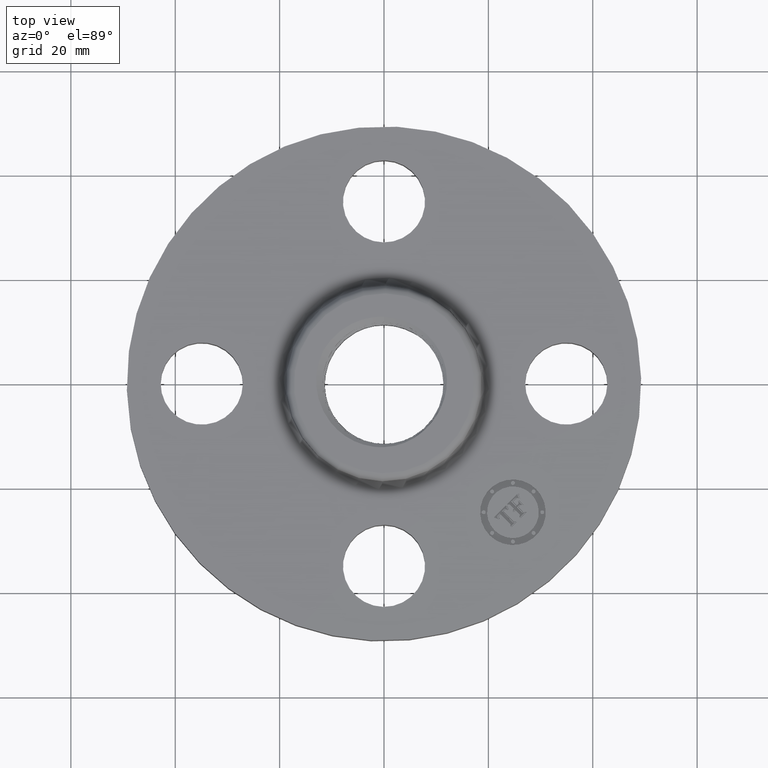
[diagram: clean part render]
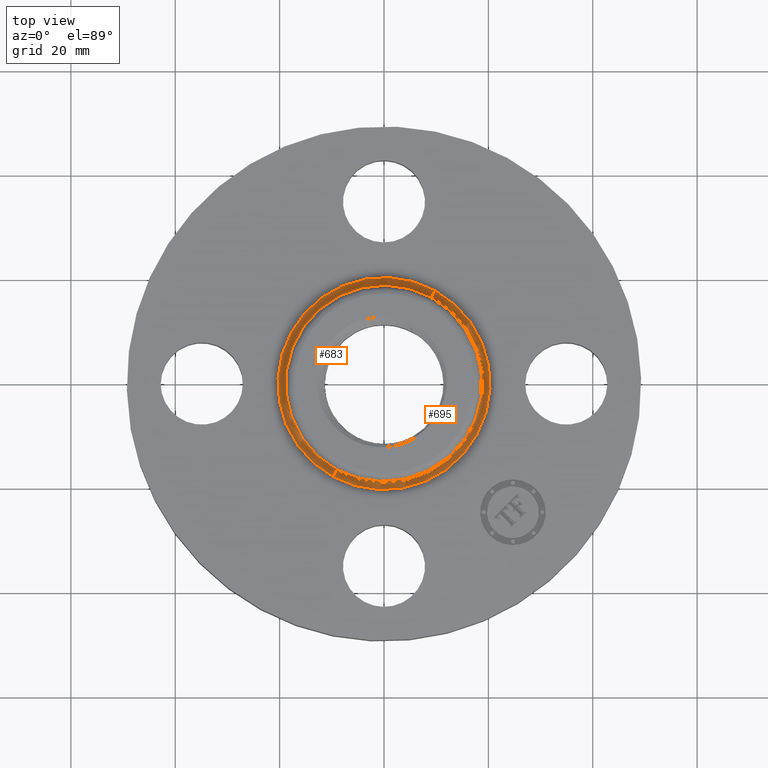
[diagram: same view with one multi-face feature highlighted, each face labeled with its STEP entity id]
A machine part, top view. The highlighted faces form ONE feature: a constant-radius fillet chain: 2 tangent blend faces with common blend radius 1.524 mm. The faces share edges in the B-rep.
Their STEP definitions:
[1] entity #683 (Torus):
#617=AXIS2_PLACEMENT_3D('Circle Axis2P3D',#615,#616,$) ;
#656=AXIS2_PLACEMENT_3D('Torus Axis2P3D',#653,#654,#655) ;
#660=AXIS2_PLACEMENT_3D('Circle Axis2P3D',#658,#659,$) ;
#669=AXIS2_PLACEMENT_3D('Circle Axis2P3D',#667,#668,$) ;
#674=AXIS2_PLACEMENT_3D('Circle Axis2P3D',#672,#673,$) ;
#615=CARTESIAN_POINT('Axis2P3D Location',(0.,0.,0.489581109342)) ;
#619=CARTESIAN_POINT('Vertex',(-0.355377782267,-0.650514667009,0.489581109342)) ;
#621=CARTESIAN_POINT('Vertex',(0.355377782267,0.650514667009,0.489581109342)) ;
#653=CARTESIAN_POINT('Axis2P3D Location',(0.,0.,0.500000000002)) ;
#658=CARTESIAN_POINT('Axis2P3D Location',(0.,0.,0.440000000002)) ;
#662=CARTESIAN_POINT('Vertex',(-0.383706301512,-0.702369673661,0.440000000002)) ;
#664=CARTESIAN_POINT('Vertex',(0.383706301512,0.702369673661,0.440000000002)) ;
#667=CARTESIAN_POINT('Axis2P3D Location',(-0.383706301512,-0.702369673661,0.500000000002)) ;
#672=CARTESIAN_POINT('Axis2P3D Location',(0.383706301512,0.702369673661,0.500000000002)) ;
#616=DIRECTION('Axis2P3D Direction',(0.,0.,-0.0393700787402)) ;
#654=DIRECTION('Axis2P3D Direction',(0.,0.,-0.0393700787402)) ;
#655=DIRECTION('Axis2P3D XDirection',(0.0188750212049,0.0345504945626,0.)) ;
#659=DIRECTION('Axis2P3D Direction',(0.,0.,-0.0393700787402)) ;
#668=DIRECTION('Axis2P3D Direction',(0.0345504945626,-0.0188750212049,0.)) ;
#673=DIRECTION('Axis2P3D Direction',(-0.0345504945626,0.0188750212049,0.)) ;
#678=ORIENTED_EDGE('',*,*,#666,.F.) ;
#679=ORIENTED_EDGE('',*,*,#671,.T.) ;
#680=ORIENTED_EDGE('',*,*,#623,.T.) ;
#681=ORIENTED_EDGE('',*,*,#676,.F.) ;
#683=ADVANCED_FACE('PartBody',(#682),#657,.F.) ;
#618=CIRCLE('generated circle',#617,0.741257512693) ;
#661=CIRCLE('generated circle',#660,0.800345977874) ;
#670=CIRCLE('generated circle',#669,0.0600000000002) ;
#675=CIRCLE('generated circle',#674,0.0600000000002) ;
#657=TOROIDAL_SURFACE('homeo Torus',#656,0.800345977874,0.0600000000002) ;
#623=EDGE_CURVE('',#620,#622,#618,.T.) ;
#666=EDGE_CURVE('',#663,#665,#661,.T.) ;
#671=EDGE_CURVE('',#663,#620,#670,.T.) ;
#676=EDGE_CURVE('',#665,#622,#675,.T.) ;
#677=EDGE_LOOP('',(#678,#679,#680,#681)) ;
#682=FACE_OUTER_BOUND('',#677,.T.) ;
#620=VERTEX_POINT('',#619) ;
#622=VERTEX_POINT('',#621) ;
#663=VERTEX_POINT('',#662) ;
#665=VERTEX_POINT('',#664) ;
[2] entity #695 (Torus):
#643=AXIS2_PLACEMENT_3D('Circle Axis2P3D',#641,#642,$) ;
#656=AXIS2_PLACEMENT_3D('Torus Axis2P3D',#653,#654,#655) ;
#669=AXIS2_PLACEMENT_3D('Circle Axis2P3D',#667,#668,$) ;
#674=AXIS2_PLACEMENT_3D('Circle Axis2P3D',#672,#673,$) ;
#686=AXIS2_PLACEMENT_3D('Circle Axis2P3D',#684,#685,$) ;
#619=CARTESIAN_POINT('Vertex',(-0.355377782267,-0.650514667009,0.489581109342)) ;
#621=CARTESIAN_POINT('Vertex',(0.355377782267,0.650514667009,0.489581109342)) ;
#641=CARTESIAN_POINT('Axis2P3D Location',(0.,0.,0.489581109342)) ;
#653=CARTESIAN_POINT('Axis2P3D Location',(0.,0.,0.500000000002)) ;
#662=CARTESIAN_POINT('Vertex',(-0.383706301512,-0.702369673661,0.440000000002)) ;
#664=CARTESIAN_POINT('Vertex',(0.383706301512,0.702369673661,0.440000000002)) ;
#667=CARTESIAN_POINT('Axis2P3D Location',(-0.383706301512,-0.702369673661,0.500000000002)) ;
#672=CARTESIAN_POINT('Axis2P3D Location',(0.383706301512,0.702369673661,0.500000000002)) ;
#684=CARTESIAN_POINT('Axis2P3D Location',(0.,0.,0.440000000002)) ;
#642=DIRECTION('Axis2P3D Direction',(0.,0.,-0.0393700787402)) ;
#654=DIRECTION('Axis2P3D Direction',(0.,0.,-0.0393700787402)) ;
#655=DIRECTION('Axis2P3D XDirection',(0.0188750212049,0.0345504945626,0.)) ;
#668=DIRECTION('Axis2P3D Direction',(0.0345504945626,-0.0188750212049,0.)) ;
#673=DIRECTION('Axis2P3D Direction',(-0.0345504945626,0.0188750212049,0.)) ;
#685=DIRECTION('Axis2P3D Direction',(0.,0.,-0.0393700787402)) ;
#690=ORIENTED_EDGE('',*,*,#688,.F.) ;
#691=ORIENTED_EDGE('',*,*,#676,.T.) ;
#692=ORIENTED_EDGE('',*,*,#645,.T.) ;
#693=ORIENTED_EDGE('',*,*,#671,.F.) ;
#695=ADVANCED_FACE('PartBody',(#694),#657,.F.) ;
#644=CIRCLE('generated circle',#643,0.741257512693) ;
#670=CIRCLE('generated circle',#669,0.0600000000002) ;
#675=CIRCLE('generated circle',#674,0.0600000000002) ;
#687=CIRCLE('generated circle',#686,0.800345977874) ;
#657=TOROIDAL_SURFACE('homeo Torus',#656,0.800345977874,0.0600000000002) ;
#645=EDGE_CURVE('',#622,#620,#644,.T.) ;
#671=EDGE_CURVE('',#663,#620,#670,.T.) ;
#676=EDGE_CURVE('',#665,#622,#675,.T.) ;
#688=EDGE_CURVE('',#665,#663,#687,.T.) ;
#689=EDGE_LOOP('',(#690,#691,#692,#693)) ;
#694=FACE_OUTER_BOUND('',#689,.T.) ;
#620=VERTEX_POINT('',#619) ;
#622=VERTEX_POINT('',#621) ;
#663=VERTEX_POINT('',#662) ;
#665=VERTEX_POINT('',#664) ;